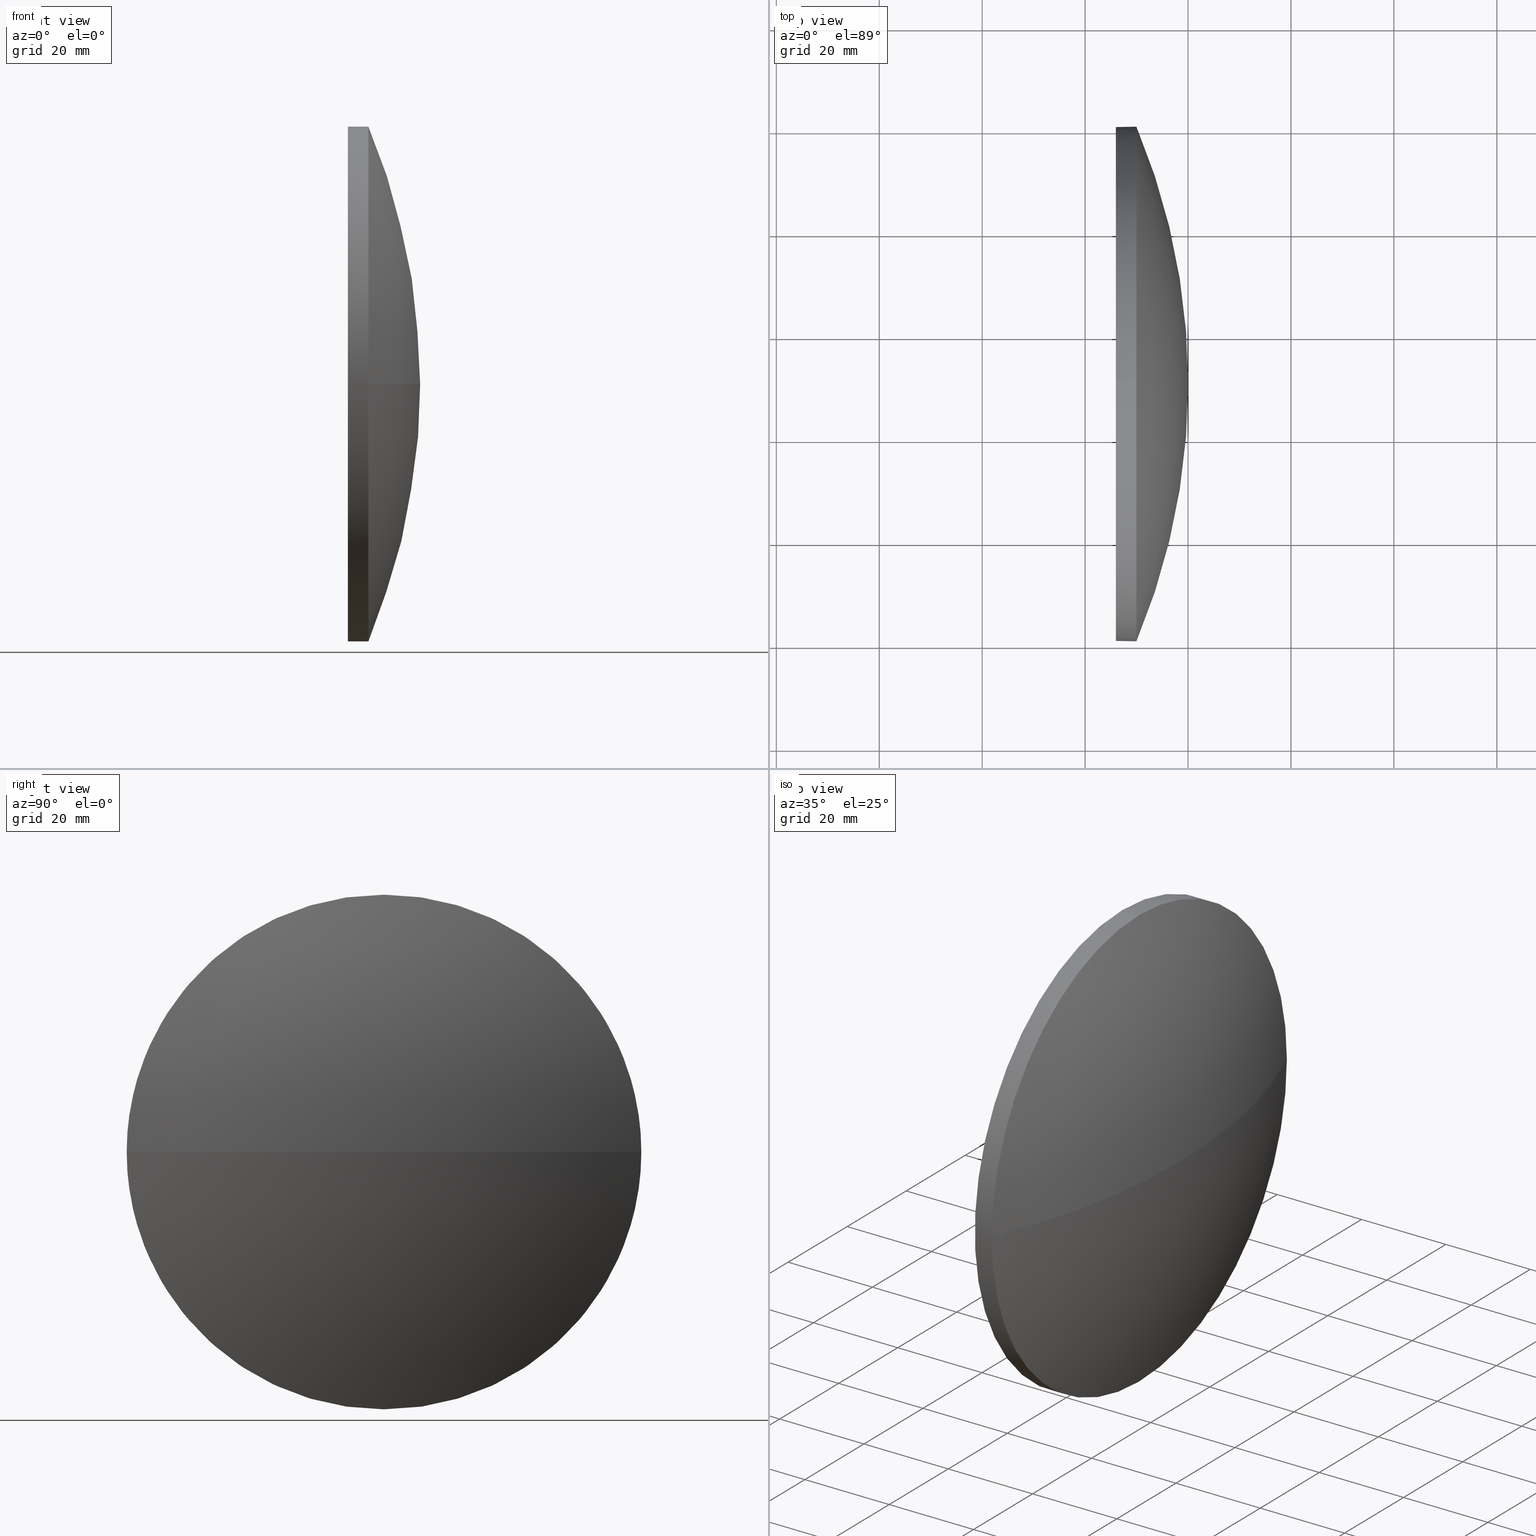
[diagram: canonical four-view strip — front | top / right | iso, engineering-drawing reading convention]
A machine part, canonical four-view strip (front | top / right | iso — engineering-drawing reading convention). The complete STEP part file that produces these views, byte-faithful:
ISO-10303-21;
HEADER;
FILE_DESCRIPTION (( 'STEP AP214' ),
    '1' );
FILE_NAME ('100170.STEP',
    '2019-05-17T06:28:14',
    ( '' ),
    ( '' ),
    'SwSTEP 2.0',
    'SolidWorks 2016',
    '' );
FILE_SCHEMA (( 'AUTOMOTIVE_DESIGN' ));
ENDSEC;

DATA;
#1 = ORIENTED_EDGE ( 'NONE', *, *, #38, .F. ) ;
#2 = DIRECTION ( 'NONE',  ( -1.000000000000000000, -0.0000000000000000000, -0.0000000000000000000 ) ) ;
#3 = DIRECTION ( 'NONE',  ( -1.000000000000000000, -0.0000000000000000000, -0.0000000000000000000 ) ) ;
#4 = DIRECTION ( 'NONE',  ( -1.000000000000000000, -0.0000000000000000000, -0.0000000000000000000 ) ) ;
#5 = APPLICATION_CONTEXT ( 'automotive_design' ) ;
#6 = CARTESIAN_POINT ( 'NONE',  ( 229.9713472661685500, 130.4671098528244200, -50.00000000000001400 ) ) ;
#7 = SURFACE_SIDE_STYLE ('',( #11 ) ) ;
#8 = ORIENTED_EDGE ( 'NONE', *, *, #70, .T. ) ;
#9 =( NAMED_UNIT ( * ) PLANE_ANGLE_UNIT ( ) SI_UNIT ( $, .RADIAN. ) );
#10 = ORIENTED_EDGE ( 'NONE', *, *, #143, .F. ) ;
#11 = SURFACE_STYLE_FILL_AREA ( #181 ) ;
#12 = EDGE_LOOP ( 'NONE', ( #1, #105, #82, #57 ) ) ;
#13 = UNCERTAINTY_MEASURE_WITH_UNIT (LENGTH_MEASURE( 1.000000000000000100E-005 ), #157, 'distance_accuracy_value', 'NONE');
#14 = PRODUCT ( '100170', '100170', '', ( #62 ) ) ;
#15 = DIRECTION ( 'NONE',  ( -0.0000000000000000000, 0.0000000000000000000, -1.000000000000000000 ) ) ;
#16 = DIRECTION ( 'NONE',  ( 0.0000000000000000000, 1.000000000000000000, 0.0000000000000000000 ) ) ;
#17 = DIRECTION ( 'NONE',  ( 0.0000000000000000000, 1.224646799147353200E-016, -1.000000000000000000 ) ) ;
#18 = DIRECTION ( 'NONE',  ( 0.0000000000000000000, 0.0000000000000000000, 1.000000000000000000 ) ) ;
#19 = FACE_OUTER_BOUND ( 'NONE', #176, .T. ) ;
#20 = CARTESIAN_POINT ( 'NONE',  ( 217.9945825323866300, 130.4671098528244200, 0.0000000000000000000 ) ) ;
#21 = EDGE_CURVE ( 'NONE', #167, #56, #175, .T. ) ;
#22 = ORIENTED_EDGE ( 'NONE', *, *, #161, .T. ) ;
#23 = ADVANCED_BREP_SHAPE_REPRESENTATION ( '100170', ( #73, #132 ), #83 ) ;
#24 = EDGE_LOOP ( 'NONE', ( #163, #66, #22, #91, #144 ) ) ;
#25 = STYLED_ITEM ( 'NONE', ( #90 ), #23 ) ;
#26 = CIRCLE ( 'NONE', #75, 50.00000000000001400 ) ;
#27 = VERTEX_POINT ( 'NONE', #6 ) ;
#28 = CARTESIAN_POINT ( 'NONE',  ( 225.9713472661685500, 130.4671098528244200, 50.00000000000001400 ) ) ;
#29 = FILL_AREA_STYLE_COLOUR ( '', #130 ) ;
#30 = DIRECTION ( 'NONE',  ( -1.000000000000000000, -0.0000000000000000000, -0.0000000000000000000 ) ) ;
#31 = CIRCLE ( 'NONE', #135, 50.00000000000001400 ) ;
#32 = APPLICATION_CONTEXT ( 'automotive_design' ) ;
#33 = DIRECTION ( 'NONE',  ( -1.000000000000000000, -0.0000000000000000000, -0.0000000000000000000 ) ) ;
#34 = FILL_AREA_STYLE_COLOUR ( '', #133 ) ;
#35 = AXIS2_PLACEMENT_3D ( 'NONE', #20, #111, #184 ) ;
#36 = VERTEX_POINT ( 'NONE', #43 ) ;
#37 = STYLED_ITEM ( 'NONE', ( #125 ), #73 ) ;
#38 = EDGE_CURVE ( 'NONE', #136, #36, #101, .T. ) ;
#39 = CIRCLE ( 'NONE', #186, 50.00000000000001400 ) ;
#40 = ADVANCED_FACE ( 'NONE', ( #19 ), #115, .T. ) ;
#41 = DIRECTION ( 'NONE',  ( -1.000000000000000000, -0.0000000000000000000, -0.0000000000000000000 ) ) ;
#42 = ORIENTED_EDGE ( 'NONE', *, *, #143, .T. ) ;
#43 = CARTESIAN_POINT ( 'NONE',  ( 229.9713472661685200, 180.4671098528244500, 0.0000000000000000000 ) ) ;
#44 = CARTESIAN_POINT ( 'NONE',  ( 240.0213472661685900, 130.4671098528244200, 0.0000000000000000000 ) ) ;
#45 = VERTEX_POINT ( 'NONE', #165 ) ;
#46 = SURFACE_SIDE_STYLE ('',( #65 ) ) ;
#47 = CARTESIAN_POINT ( 'NONE',  ( 0.0000000000000000000, 0.0000000000000000000, 0.0000000000000000000 ) ) ;
#48 = ORIENTED_EDGE ( 'NONE', *, *, #114, .T. ) ;
#49 = SURFACE_STYLE_USAGE ( .BOTH. , #46 ) ;
#50 = ORIENTED_EDGE ( 'NONE', *, *, #161, .F. ) ;
#51 = APPLICATION_PROTOCOL_DEFINITION ( 'draft international standard', 'automotive_design', 1998, #5 ) ;
#52 = LINE ( 'NONE', #88, #170 ) ;
#53 = UNCERTAINTY_MEASURE_WITH_UNIT (LENGTH_MEASURE( 1.000000000000000100E-005 ), #151, 'distance_accuracy_value', 'NONE');
#54 = AXIS2_PLACEMENT_3D ( 'NONE', #71, #177, #180 ) ;
#55 = SHAPE_DEFINITION_REPRESENTATION ( #80, #23 ) ;
#56 = VERTEX_POINT ( 'NONE', #28 ) ;
#57 = ORIENTED_EDGE ( 'NONE', *, *, #131, .F. ) ;
#58 = FACE_OUTER_BOUND ( 'NONE', #134, .T. ) ;
#59 = CARTESIAN_POINT ( 'NONE',  ( 110.6182378134324400, 130.4671098528244200, 0.0000000000000000000 ) ) ;
#60 = DIRECTION ( 'NONE',  ( 0.0000000000000000000, 0.0000000000000000000, -1.000000000000000000 ) ) ;
#61 = CARTESIAN_POINT ( 'NONE',  ( 229.9713472661685500, 130.4671098528244200, 0.0000000000000000000 ) ) ;
#62 = PRODUCT_CONTEXT ( 'NONE', #32, 'mechanical' ) ;
#63 = ORIENTED_EDGE ( 'NONE', *, *, #21, .F. ) ;
#64 =( NAMED_UNIT ( * ) SI_UNIT ( $, .STERADIAN. ) SOLID_ANGLE_UNIT ( ) );
#65 = SURFACE_STYLE_FILL_AREA ( #142 ) ;
#66 = ORIENTED_EDGE ( 'NONE', *, *, #169, .T. ) ;
#67 = EDGE_CURVE ( 'NONE', #74, #56, #96, .T. ) ;
#68 = AXIS2_PLACEMENT_3D ( 'NONE', #77, #92, #120 ) ;
#69 =( GEOMETRIC_REPRESENTATION_CONTEXT ( 3 ) GLOBAL_UNCERTAINTY_ASSIGNED_CONTEXT ( ( #53 ) ) GLOBAL_UNIT_ASSIGNED_CONTEXT ( ( #151, #108, #89 ) ) REPRESENTATION_CONTEXT ( 'NONE', 'WORKASPACE' ) );
#70 = EDGE_CURVE ( 'NONE', #27, #74, #52, .T. ) ;
#71 = CARTESIAN_POINT ( 'NONE',  ( 217.9945825323866300, 130.4671098528244200, 0.0000000000000000000 ) ) ;
#72 = DIRECTION ( 'NONE',  ( 0.0000000000000000000, 0.0000000000000000000, 1.000000000000000000 ) ) ;
#73 = MANIFOLD_SOLID_BREP ( '��ת1', #117 ) ;
#74 = VERTEX_POINT ( 'NONE', #148 ) ;
#75 = AXIS2_PLACEMENT_3D ( 'NONE', #93, #4, #123 ) ;
#76 =( LENGTH_UNIT ( ) NAMED_UNIT ( * ) SI_UNIT ( .MILLI., .METRE. ) );
#77 = CARTESIAN_POINT ( 'NONE',  ( 229.9713472661685500, 130.4671098528244200, 0.0000000000000000000 ) ) ;
#78 = CIRCLE ( 'NONE', #118, 129.4031094527361200 ) ;
#79 = MECHANICAL_DESIGN_GEOMETRIC_PRESENTATION_REPRESENTATION (  '', ( #37 ), #69 ) ;
#80 = PRODUCT_DEFINITION_SHAPE ( 'NONE', 'NONE',  #95 ) ;
#81 = AXIS2_PLACEMENT_3D ( 'NONE', #85, #15, #164 ) ;
#82 = ORIENTED_EDGE ( 'NONE', *, *, #169, .F. ) ;
#83 =( GEOMETRIC_REPRESENTATION_CONTEXT ( 3 ) GLOBAL_UNCERTAINTY_ASSIGNED_CONTEXT ( ( #155 ) ) GLOBAL_UNIT_ASSIGNED_CONTEXT ( ( #76, #109, #124 ) ) REPRESENTATION_CONTEXT ( 'NONE', 'WORKASPACE' ) );
#84 = ORIENTED_EDGE ( 'NONE', *, *, #114, .F. ) ;
#85 = CARTESIAN_POINT ( 'NONE',  ( 110.6182378134324400, 130.4671098528244200, 0.0000000000000000000 ) ) ;
#86 = ADVANCED_FACE ( 'NONE', ( #87 ), #173, .T. ) ;
#87 = FACE_OUTER_BOUND ( 'NONE', #12, .T. ) ;
#88 = CARTESIAN_POINT ( 'NONE',  ( 217.9945825323866300, 130.4671098528244200, -50.00000000000001400 ) ) ;
#89 =( NAMED_UNIT ( * ) SI_UNIT ( $, .STERADIAN. ) SOLID_ANGLE_UNIT ( ) );
#90 = PRESENTATION_STYLE_ASSIGNMENT (( #49 ) ) ;
#91 = ORIENTED_EDGE ( 'NONE', *, *, #21, .T. ) ;
#92 = DIRECTION ( 'NONE',  ( -1.000000000000000000, -0.0000000000000000000, -0.0000000000000000000 ) ) ;
#93 = CARTESIAN_POINT ( 'NONE',  ( 225.9713472661685500, 130.4671098528244200, 0.0000000000000000000 ) ) ;
#94 = CARTESIAN_POINT ( 'NONE',  ( 229.9713472661685500, 130.4671098528244200, 0.0000000000000000000 ) ) ;
#95 = PRODUCT_DEFINITION ( 'δ֪', '', #146, #121 ) ;
#96 = CIRCLE ( 'NONE', #107, 50.00000000000001400 ) ;
#97 = DIRECTION ( 'NONE',  ( 0.0000000000000000000, 1.000000000000000000, 1.224646799147353500E-016 ) ) ;
#98 = AXIS2_PLACEMENT_3D ( 'NONE', #59, #150, #106 ) ;
#99 = CYLINDRICAL_SURFACE ( 'NONE', #35, 50.00000000000001400 ) ;
#100 = EDGE_LOOP ( 'NONE', ( #42, #103 ) ) ;
#101 = CIRCLE ( 'NONE', #98, 129.4031094527361500 ) ;
#102 = FACE_OUTER_BOUND ( 'NONE', #24, .T. ) ;
#103 = ORIENTED_EDGE ( 'NONE', *, *, #67, .T. ) ;
#104 = ADVANCED_FACE ( 'NONE', ( #102 ), #158, .T. ) ;
#105 = ORIENTED_EDGE ( 'NONE', *, *, #159, .T. ) ;
#106 = DIRECTION ( 'NONE',  ( 1.000000000000000000, 0.0000000000000000000, 0.0000000000000000000 ) ) ;
#107 = AXIS2_PLACEMENT_3D ( 'NONE', #137, #41, #72 ) ;
#108 =( NAMED_UNIT ( * ) PLANE_ANGLE_UNIT ( ) SI_UNIT ( $, .RADIAN. ) );
#109 =( NAMED_UNIT ( * ) PLANE_ANGLE_UNIT ( ) SI_UNIT ( $, .RADIAN. ) );
#110 = PRODUCT_RELATED_PRODUCT_CATEGORY ( 'part', '', ( #14 ) ) ;
#111 = DIRECTION ( 'NONE',  ( -1.000000000000000000, -0.0000000000000000000, -0.0000000000000000000 ) ) ;
#112 = CARTESIAN_POINT ( 'NONE',  ( 225.9713472661685500, 130.4671098528244200, 0.0000000000000000000 ) ) ;
#113 = CARTESIAN_POINT ( 'NONE',  ( 110.6182378134324400, 130.4671098528244200, 0.0000000000000000000 ) ) ;
#114 = EDGE_CURVE ( 'NONE', #167, #36, #127, .T. ) ;
#115 = SPHERICAL_SURFACE ( 'NONE', #129, 129.4031094527361500 ) ;
#116 = PRESENTATION_LAYER_ASSIGNMENT (  '', '', ( #25 ) ) ;
#117 = CLOSED_SHELL ( 'NONE', ( #179, #86, #40, #104, #149 ) ) ;
#118 = AXIS2_PLACEMENT_3D ( 'NONE', #113, #17, #97 ) ;
#119 = DIRECTION ( 'NONE',  ( -1.000000000000000000, -0.0000000000000000000, -0.0000000000000000000 ) ) ;
#120 = DIRECTION ( 'NONE',  ( 0.0000000000000000000, 0.0000000000000000000, 1.000000000000000000 ) ) ;
#121 = PRODUCT_DEFINITION_CONTEXT ( 'detailed design', #5, 'design' ) ;
#122 = CARTESIAN_POINT ( 'NONE',  ( 229.9713472661685500, 130.4671098528244200, 0.0000000000000000000 ) ) ;
#123 = DIRECTION ( 'NONE',  ( 0.0000000000000000000, 0.0000000000000000000, 1.000000000000000000 ) ) ;
#124 =( NAMED_UNIT ( * ) SI_UNIT ( $, .STERADIAN. ) SOLID_ANGLE_UNIT ( ) );
#125 = PRESENTATION_STYLE_ASSIGNMENT (( #183 ) ) ;
#126 = MECHANICAL_DESIGN_GEOMETRIC_PRESENTATION_REPRESENTATION (  '', ( #25 ), #145 ) ;
#127 = CIRCLE ( 'NONE', #68, 50.00000000000001400 ) ;
#128 = ORIENTED_EDGE ( 'NONE', *, *, #38, .T. ) ;
#129 = AXIS2_PLACEMENT_3D ( 'NONE', #162, #152, #16 ) ;
#130 = COLOUR_RGB ( '',1.000000000000000000, 1.000000000000000000, 1.000000000000000000 ) ;
#131 = EDGE_CURVE ( 'NONE', #36, #27, #31, .T. ) ;
#132 = AXIS2_PLACEMENT_3D ( 'NONE', #47, #154, #168 ) ;
#133 = COLOUR_RGB ( '',1.000000000000000000, 1.000000000000000000, 1.000000000000000000 ) ;
#134 = EDGE_LOOP ( 'NONE', ( #171, #8, #10, #63, #48 ) ) ;
#135 = AXIS2_PLACEMENT_3D ( 'NONE', #61, #33, #18 ) ;
#136 = VERTEX_POINT ( 'NONE', #44 ) ;
#137 = CARTESIAN_POINT ( 'NONE',  ( 225.9713472661685500, 130.4671098528244200, 0.0000000000000000000 ) ) ;
#138 = DIRECTION ( 'NONE',  ( 1.000000000000000000, 0.0000000000000000000, 0.0000000000000000000 ) ) ;
#139 = APPLICATION_PROTOCOL_DEFINITION ( 'draft international standard', 'automotive_design', 1998, #32 ) ;
#140 = PLANE ( 'NONE',  #141 ) ;
#141 = AXIS2_PLACEMENT_3D ( 'NONE', #112, #138, #60 ) ;
#142 = FILL_AREA_STYLE ('',( #34 ) ) ;
#143 = EDGE_CURVE ( 'NONE', #56, #74, #26, .T. ) ;
#144 = ORIENTED_EDGE ( 'NONE', *, *, #67, .F. ) ;
#145 =( GEOMETRIC_REPRESENTATION_CONTEXT ( 3 ) GLOBAL_UNCERTAINTY_ASSIGNED_CONTEXT ( ( #13 ) ) GLOBAL_UNIT_ASSIGNED_CONTEXT ( ( #157, #9, #64 ) ) REPRESENTATION_CONTEXT ( 'NONE', 'WORKASPACE' ) );
#146 = PRODUCT_DEFINITION_FORMATION_WITH_SPECIFIED_SOURCE ( '�κ�', '', #14, .NOT_KNOWN. ) ;
#147 = VECTOR ( 'NONE', #30, 1000.000000000000000 ) ;
#148 = CARTESIAN_POINT ( 'NONE',  ( 225.9713472661685500, 130.4671098528244200, -50.00000000000001400 ) ) ;
#149 = ADVANCED_FACE ( 'NONE', ( #182 ), #140, .F. ) ;
#150 = DIRECTION ( 'NONE',  ( -0.0000000000000000000, 0.0000000000000000000, 1.000000000000000000 ) ) ;
#151 =( LENGTH_UNIT ( ) NAMED_UNIT ( * ) SI_UNIT ( .MILLI., .METRE. ) );
#152 = DIRECTION ( 'NONE',  ( -0.0000000000000000000, 0.0000000000000000000, -1.000000000000000000 ) ) ;
#153 = DIRECTION ( 'NONE',  ( 0.0000000000000000000, 0.0000000000000000000, 1.000000000000000000 ) ) ;
#154 = DIRECTION ( 'NONE',  ( 0.0000000000000000000, 0.0000000000000000000, 1.000000000000000000 ) ) ;
#155 = UNCERTAINTY_MEASURE_WITH_UNIT (LENGTH_MEASURE( 1.000000000000000100E-005 ), #76, 'distance_accuracy_value', 'NONE');
#156 = CARTESIAN_POINT ( 'NONE',  ( 229.9713472661685500, 130.4671098528244200, 50.00000000000001400 ) ) ;
#157 =( LENGTH_UNIT ( ) NAMED_UNIT ( * ) SI_UNIT ( .MILLI., .METRE. ) );
#158 = CYLINDRICAL_SURFACE ( 'NONE', #54, 50.00000000000001400 ) ;
#159 = EDGE_CURVE ( 'NONE', #136, #45, #78, .T. ) ;
#160 = ORIENTED_EDGE ( 'NONE', *, *, #159, .F. ) ;
#161 = EDGE_CURVE ( 'NONE', #45, #167, #174, .T. ) ;
#162 = CARTESIAN_POINT ( 'NONE',  ( 110.6182378134324400, 130.4671098528244200, 0.0000000000000000000 ) ) ;
#163 = ORIENTED_EDGE ( 'NONE', *, *, #70, .F. ) ;
#164 = DIRECTION ( 'NONE',  ( 0.0000000000000000000, 1.000000000000000000, 0.0000000000000000000 ) ) ;
#165 = CARTESIAN_POINT ( 'NONE',  ( 229.9713472661685200, 80.46710985282439300, -6.123233995736770000E-015 ) ) ;
#166 = CARTESIAN_POINT ( 'NONE',  ( 217.9945825323866300, 130.4671098528244200, 50.00000000000001400 ) ) ;
#167 = VERTEX_POINT ( 'NONE', #156 ) ;
#168 = DIRECTION ( 'NONE',  ( 1.000000000000000000, 0.0000000000000000000, 0.0000000000000000000 ) ) ;
#169 = EDGE_CURVE ( 'NONE', #27, #45, #39, .T. ) ;
#170 = VECTOR ( 'NONE', #119, 1000.000000000000000 ) ;
#171 = ORIENTED_EDGE ( 'NONE', *, *, #131, .T. ) ;
#172 = AXIS2_PLACEMENT_3D ( 'NONE', #94, #2, #185 ) ;
#173 = SPHERICAL_SURFACE ( 'NONE', #81, 129.4031094527361500 ) ;
#174 = CIRCLE ( 'NONE', #172, 50.00000000000001400 ) ;
#175 = LINE ( 'NONE', #166, #147 ) ;
#176 = EDGE_LOOP ( 'NONE', ( #160, #128, #84, #50 ) ) ;
#177 = DIRECTION ( 'NONE',  ( -1.000000000000000000, -0.0000000000000000000, -0.0000000000000000000 ) ) ;
#178 = PRESENTATION_LAYER_ASSIGNMENT (  '', '', ( #37 ) ) ;
#179 = ADVANCED_FACE ( 'NONE', ( #58 ), #99, .T. ) ;
#180 = DIRECTION ( 'NONE',  ( 0.0000000000000000000, 0.0000000000000000000, 1.000000000000000000 ) ) ;
#181 = FILL_AREA_STYLE ('',( #29 ) ) ;
#182 = FACE_OUTER_BOUND ( 'NONE', #100, .T. ) ;
#183 = SURFACE_STYLE_USAGE ( .BOTH. , #7 ) ;
#184 = DIRECTION ( 'NONE',  ( 0.0000000000000000000, 0.0000000000000000000, 1.000000000000000000 ) ) ;
#185 = DIRECTION ( 'NONE',  ( 0.0000000000000000000, 0.0000000000000000000, 1.000000000000000000 ) ) ;
#186 = AXIS2_PLACEMENT_3D ( 'NONE', #122, #3, #153 ) ;
ENDSEC;
END-ISO-10303-21;
